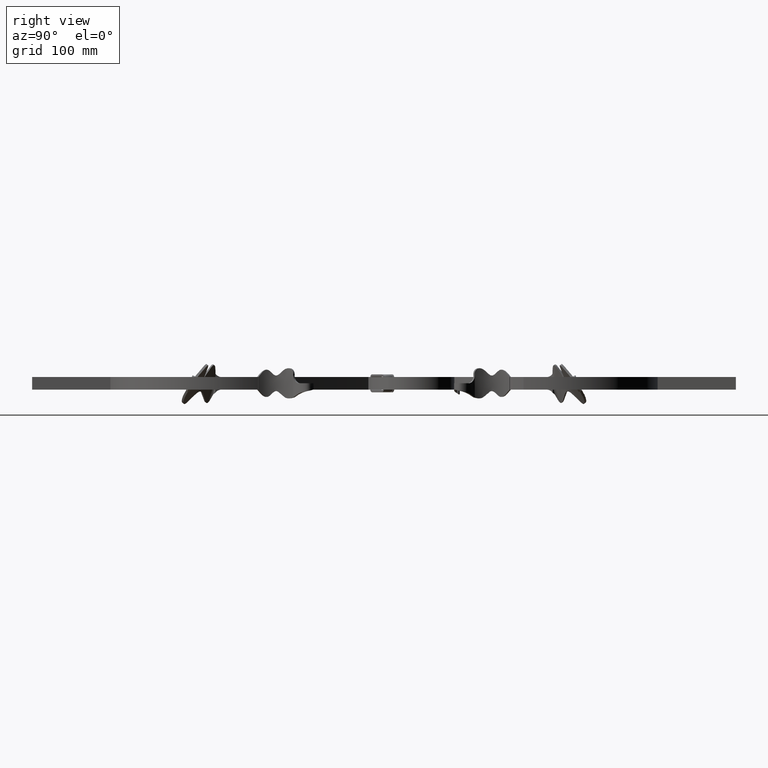
[diagram: clean part render]
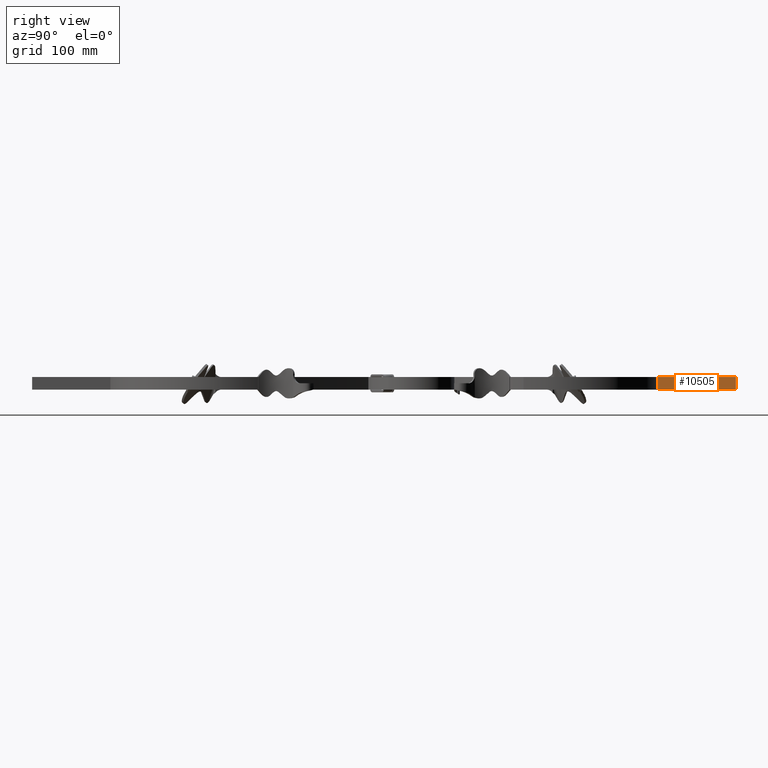
[diagram: same view with one face highlighted and labeled with its STEP entity id]
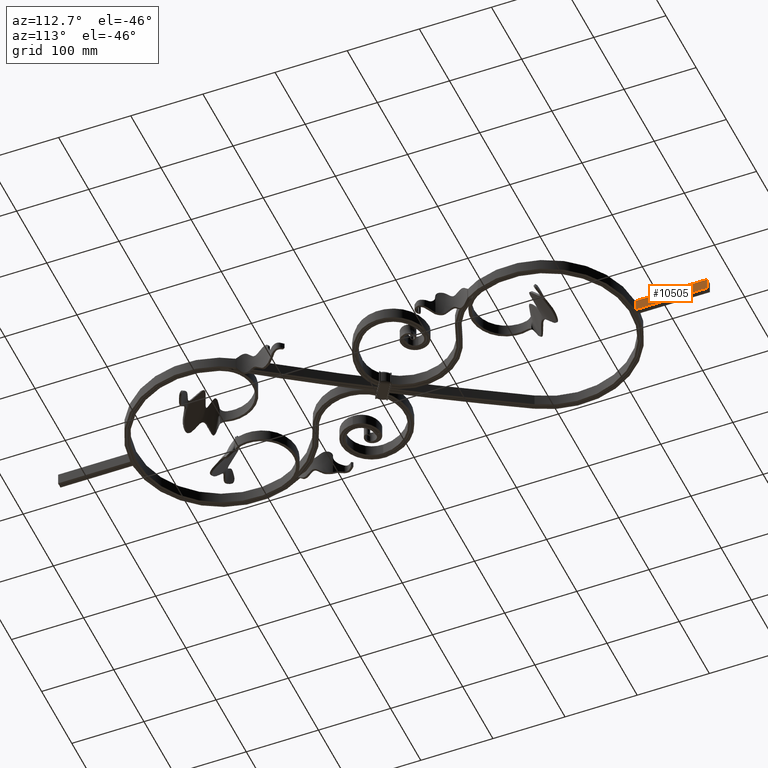
[diagram: same view with one face highlighted and labeled with its STEP entity id]
A machine part, right view. The second image highlights one B-rep face of the part: STEP entity #10505.
A second angle (auxiliary view) of the same face is appended — the face is thin or edge-on in the first view.
In plain terms, the highlighted planar face has unit normal (1, 0, -0).
Its self-contained STEP definition (entity closure, byte-faithful):
#114 = DIRECTION ( 'NONE',  ( -0.000000000000000000, 1.000000000000000000, -0.000000000000000000 ) ) ;
#237 = DIRECTION ( 'NONE',  ( -0.000000000000000000, -0.000000000000000000, -1.000000000000000000 ) ) ;
#664 = CARTESIAN_POINT ( 'NONE',  ( 4.000000000000001776, 450.0000000000000000, 7.999999999999998224 ) ) ;
#1032 = VECTOR ( 'NONE', #237, 1000.000000000000000 ) ;
#1124 = VECTOR ( 'NONE', #114, 1000.000000000000000 ) ;
#1426 = DIRECTION ( 'NONE',  ( 1.000000000000000000, 0.000000000000000000, -1.084202172485504557E-16 ) ) ;
#1468 = ORIENTED_EDGE ( 'NONE', *, *, #1709, .T. ) ;
#1611 = AXIS2_PLACEMENT_3D ( 'NONE', #13160, #1426, #15133 ) ;
#1709 = EDGE_CURVE ( 'NONE', #16246, #18256, #20624, .T. ) ;
#2341 = DIRECTION ( 'NONE',  ( -0.000000000000000000, 1.000000000000000000, -0.000000000000000000 ) ) ;
#3301 = VECTOR ( 'NONE', #13297, 1000.000000000000000 ) ;
#5706 = VERTEX_POINT ( 'NONE', #25317 ) ;
#6937 = LINE ( 'NONE', #9797, #1124 ) ;
#8821 = EDGE_CURVE ( 'NONE', #23582, #5706, #14646, .T. ) ;
#9797 = CARTESIAN_POINT ( 'NONE',  ( 4.000000000000000000, 348.0000000000000568, -8.000000000000001776 ) ) ;
#10004 = CARTESIAN_POINT ( 'NONE',  ( 4.000000000000001776, 348.0000000000000568, 7.999999999999998224 ) ) ;
#10484 = CARTESIAN_POINT ( 'NONE',  ( 4.000000000000000000, 349.9359836076039869, -8.000000000000001776 ) ) ;
#10505 = ADVANCED_FACE ( 'NONE', ( #18311 ), #17435, .T. ) ;
#12670 = LINE ( 'NONE', #10004, #23342 ) ;
#13160 = CARTESIAN_POINT ( 'NONE',  ( 4.000000000000000000, 348.0000000000000568, -8.000000000000001776 ) ) ;
#13297 = DIRECTION ( 'NONE',  ( -1.084202172485504434E-16, 0.000000000000000000, -1.000000000000000000 ) ) ;
#13775 = CARTESIAN_POINT ( 'NONE',  ( 4.000000000000000888, 349.9359836076039869, -4.336808689941884123E-16 ) ) ;
#14646 = LINE ( 'NONE', #17316, #3301 ) ;
#15133 = DIRECTION ( 'NONE',  ( -1.084202172485504557E-16, 0.000000000000000000, -1.000000000000000000 ) ) ;
#16246 = VERTEX_POINT ( 'NONE', #16978 ) ;
#16639 = ORIENTED_EDGE ( 'NONE', *, *, #8821, .F. ) ;
#16978 = CARTESIAN_POINT ( 'NONE',  ( 4.000000000000000888, 349.9359836076039869, 8.000000000000001776 ) ) ;
#17105 = ORIENTED_EDGE ( 'NONE', *, *, #21573, .T. ) ;
#17316 = CARTESIAN_POINT ( 'NONE',  ( 4.000000000000000000, 450.0000000000000000, -8.000000000000001776 ) ) ;
#17435 = PLANE ( 'NONE',  #1611 ) ;
#18221 = ORIENTED_EDGE ( 'NONE', *, *, #23903, .F. ) ;
#18256 = VERTEX_POINT ( 'NONE', #10484 ) ;
#18311 = FACE_OUTER_BOUND ( 'NONE', #23315, .T. ) ;
#20624 = LINE ( 'NONE', #13775, #1032 ) ;
#21573 = EDGE_CURVE ( 'NONE', #18256, #5706, #6937, .T. ) ;
#23315 = EDGE_LOOP ( 'NONE', ( #18221, #1468, #17105, #16639 ) ) ;
#23342 = VECTOR ( 'NONE', #2341, 1000.000000000000000 ) ;
#23582 = VERTEX_POINT ( 'NONE', #664 ) ;
#23903 = EDGE_CURVE ( 'NONE', #16246, #23582, #12670, .T. ) ;
#25317 = CARTESIAN_POINT ( 'NONE',  ( 4.000000000000000000, 450.0000000000000000, -8.000000000000001776 ) ) ;